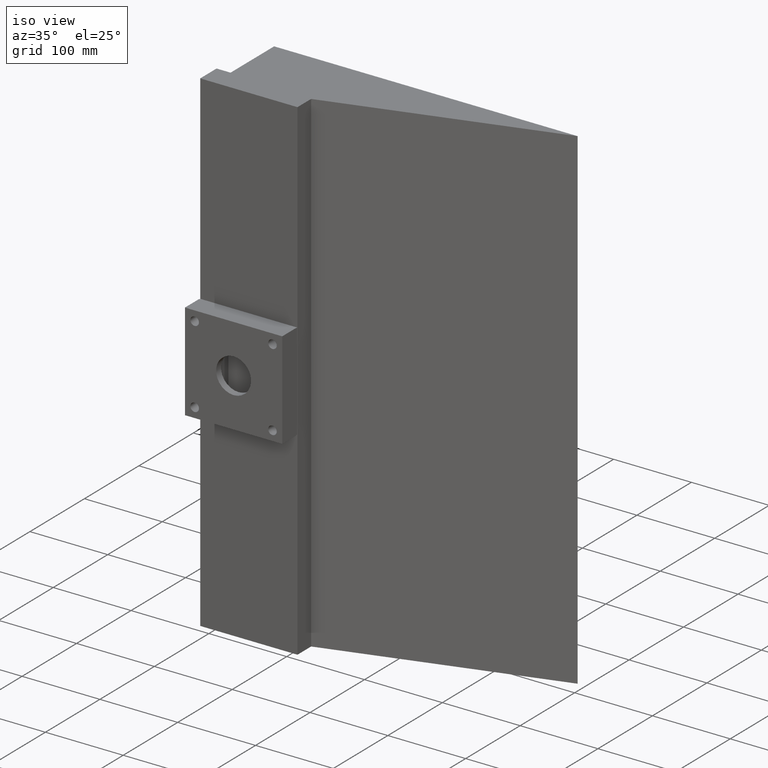
[diagram: clean part render]
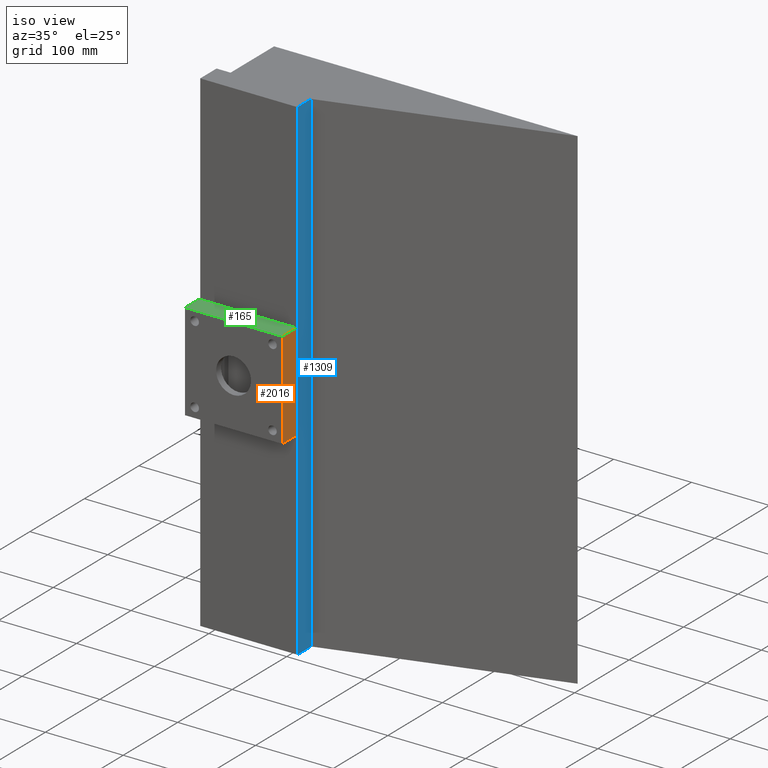
[diagram: same view with three faces highlighted in distinct colors, each labeled with its STEP entity id]
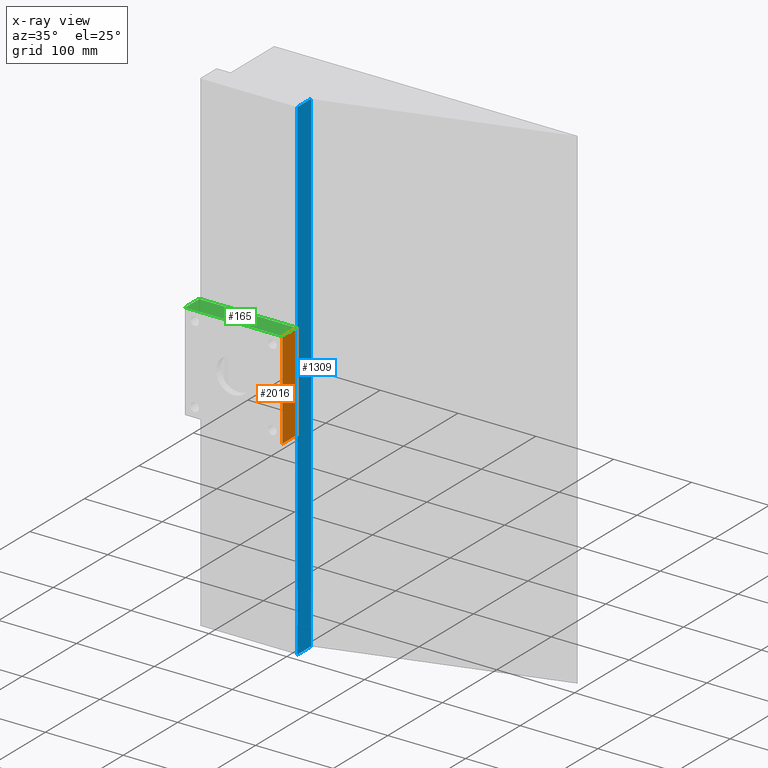
[diagram: x-ray of the same camera — body ghosted, the three highlighted faces saturated]
A machine part, iso view with three faces highlighted in distinct colors.
The next image is the same camera in x-ray (body ghosted, the three faces saturated) — at least one of them is partly hidden behind the body in this view.
Their STEP definitions:

[orange] entity #2016 — the highlighted planar face has unit normal (-1, 0, 0).
#107 = CARTESIAN_POINT ( 'NONE',  ( 20.88361753920467500, -112.0000000000000400, 62.49999999999938900 ) ) ;
#124 = ORIENTED_EDGE ( 'NONE', *, *, #1440, .F. ) ;
#169 = AXIS2_PLACEMENT_3D ( 'NONE', #2486, #291, #312 ) ;
#217 = DIRECTION ( 'NONE',  ( -0.0000000000000000000, -1.000000000000000000, -0.0000000000000000000 ) ) ;
#232 = VERTEX_POINT ( 'NONE', #2226 ) ;
#291 = DIRECTION ( 'NONE',  ( -1.000000000000000000, 0.0000000000000000000, 1.110223024625156500E-016 ) ) ;
#312 = DIRECTION ( 'NONE',  ( 1.110223024625156500E-016, 0.0000000000000000000, 1.000000000000000000 ) ) ;
#439 = VECTOR ( 'NONE', #1144, 1000.000000000000000 ) ;
#551 = LINE ( 'NONE', #2341, #1644 ) ;
#570 = ORIENTED_EDGE ( 'NONE', *, *, #1450, .T. ) ;
#589 = VERTEX_POINT ( 'NONE', #2035 ) ;
#785 = VERTEX_POINT ( 'NONE', #107 ) ;
#1052 = LINE ( 'NONE', #1416, #2244 ) ;
#1144 = DIRECTION ( 'NONE',  ( -1.110223024625156500E-016, -0.0000000000000000000, -1.000000000000000000 ) ) ;
#1149 = CARTESIAN_POINT ( 'NONE',  ( 20.88361753920466100, -138.0000000000000300, -62.50000000000061100 ) ) ;
#1416 = CARTESIAN_POINT ( 'NONE',  ( 20.88361753920466100, -112.0000000000000400, -62.50000000000061100 ) ) ;
#1440 = EDGE_CURVE ( 'NONE', #785, #232, #1052, .T. ) ;
#1450 = EDGE_CURVE ( 'NONE', #785, #2727, #551, .T. ) ;
#1579 = EDGE_CURVE ( 'NONE', #2727, #589, #2076, .T. ) ;
#1644 = VECTOR ( 'NONE', #217, 1000.000000000000000 ) ;
#1658 = EDGE_LOOP ( 'NONE', ( #1781, #2011, #124, #570 ) ) ;
#1781 = ORIENTED_EDGE ( 'NONE', *, *, #1579, .T. ) ;
#1800 = PLANE ( 'NONE',  #169 ) ;
#1922 = EDGE_CURVE ( 'NONE', #232, #589, #2069, .T. ) ;
#1956 = VECTOR ( 'NONE', #2746, 1000.000000000000000 ) ;
#2011 = ORIENTED_EDGE ( 'NONE', *, *, #1922, .F. ) ;
#2016 = ADVANCED_FACE ( 'NONE', ( #2569 ), #1800, .F. ) ;
#2035 = CARTESIAN_POINT ( 'NONE',  ( 20.88361753920466100, -138.0000000000000300, -62.50000000000061100 ) ) ;
#2047 = DIRECTION ( 'NONE',  ( -1.110223024625156500E-016, -0.0000000000000000000, -1.000000000000000000 ) ) ;
#2069 = LINE ( 'NONE', #2581, #1956 ) ;
#2076 = LINE ( 'NONE', #1149, #439 ) ;
#2226 = CARTESIAN_POINT ( 'NONE',  ( 20.88361753920466100, -112.0000000000000400, -62.50000000000061100 ) ) ;
#2244 = VECTOR ( 'NONE', #2047, 1000.000000000000000 ) ;
#2341 = CARTESIAN_POINT ( 'NONE',  ( 20.88361753920467500, -112.0000000000000400, 62.49999999999938900 ) ) ;
#2486 = CARTESIAN_POINT ( 'NONE',  ( 20.88361753920466100, -112.0000000000000400, -62.50000000000061100 ) ) ;
#2569 = FACE_OUTER_BOUND ( 'NONE', #1658, .T. ) ;
#2578 = CARTESIAN_POINT ( 'NONE',  ( 20.88361753920467500, -138.0000000000000300, 62.49999999999938900 ) ) ;
#2581 = CARTESIAN_POINT ( 'NONE',  ( 20.88361753920466100, -112.0000000000000400, -62.50000000000061100 ) ) ;
#2727 = VERTEX_POINT ( 'NONE', #2578 ) ;
#2746 = DIRECTION ( 'NONE',  ( -0.0000000000000000000, -1.000000000000000000, -0.0000000000000000000 ) ) ;

[blue] entity #1309 — the highlighted planar face has unit normal (-1, 0, 0).
#105 = FACE_OUTER_BOUND ( 'NONE', #342, .T. ) ;
#106 = ORIENTED_EDGE ( 'NONE', *, *, #1549, .F. ) ;
#108 = CARTESIAN_POINT ( 'NONE',  ( 20.88361753920343500, -84.99999999999998600, -318.0000000000000000 ) ) ;
#258 = CARTESIAN_POINT ( 'NONE',  ( 20.88361753920343500, -110.0000000000000000, -318.0000000000000000 ) ) ;
#301 = VECTOR ( 'NONE', #1747, 1000.000000000000000 ) ;
#323 = LINE ( 'NONE', #108, #301 ) ;
#342 = EDGE_LOOP ( 'NONE', ( #1058, #1324, #106, #1402 ) ) ;
#479 = DIRECTION ( 'NONE',  ( -0.0000000000000000000, -0.0000000000000000000, -1.000000000000000000 ) ) ;
#514 = CARTESIAN_POINT ( 'NONE',  ( 20.88361753920343500, -110.0000000000000000, 318.0000000000000000 ) ) ;
#560 = AXIS2_PLACEMENT_3D ( 'NONE', #1603, #1055, #1050 ) ;
#624 = EDGE_CURVE ( 'NONE', #830, #1073, #2498, .T. ) ;
#663 = VERTEX_POINT ( 'NONE', #258 ) ;
#830 = VERTEX_POINT ( 'NONE', #2192 ) ;
#884 = CARTESIAN_POINT ( 'NONE',  ( 20.88361753920343500, -110.0000000000000000, 318.0000000000000000 ) ) ;
#904 = DIRECTION ( 'NONE',  ( -0.0000000000000000000, -0.0000000000000000000, -1.000000000000000000 ) ) ;
#1050 = DIRECTION ( 'NONE',  ( 0.0000000000000000000, 0.0000000000000000000, 1.000000000000000000 ) ) ;
#1055 = DIRECTION ( 'NONE',  ( -1.000000000000000000, 0.0000000000000000000, 0.0000000000000000000 ) ) ;
#1058 = ORIENTED_EDGE ( 'NONE', *, *, #2424, .T. ) ;
#1073 = VERTEX_POINT ( 'NONE', #1415 ) ;
#1075 = CARTESIAN_POINT ( 'NONE',  ( 20.88361753920343500, -84.99999999999998600, 318.0000000000000000 ) ) ;
#1269 = VERTEX_POINT ( 'NONE', #884 ) ;
#1309 = ADVANCED_FACE ( 'NONE', ( #105 ), #1934, .F. ) ;
#1324 = ORIENTED_EDGE ( 'NONE', *, *, #624, .F. ) ;
#1402 = ORIENTED_EDGE ( 'NONE', *, *, #1731, .T. ) ;
#1415 = CARTESIAN_POINT ( 'NONE',  ( 20.88361753920343500, -84.99999999999998600, -318.0000000000000000 ) ) ;
#1429 = VECTOR ( 'NONE', #904, 1000.000000000000000 ) ;
#1462 = VECTOR ( 'NONE', #2866, 1000.000000000000000 ) ;
#1549 = EDGE_CURVE ( 'NONE', #1269, #830, #2207, .T. ) ;
#1603 = CARTESIAN_POINT ( 'NONE',  ( 20.88361753920343500, -84.99999999999998600, 318.0000000000000000 ) ) ;
#1731 = EDGE_CURVE ( 'NONE', #1269, #663, #2786, .T. ) ;
#1747 = DIRECTION ( 'NONE',  ( -0.0000000000000000000, 1.000000000000000000, -0.0000000000000000000 ) ) ;
#1934 = PLANE ( 'NONE',  #560 ) ;
#2192 = CARTESIAN_POINT ( 'NONE',  ( 20.88361753920343500, -84.99999999999998600, 318.0000000000000000 ) ) ;
#2207 = LINE ( 'NONE', #1075, #1462 ) ;
#2424 = EDGE_CURVE ( 'NONE', #663, #1073, #323, .T. ) ;
#2498 = LINE ( 'NONE', #2840, #1429 ) ;
#2748 = VECTOR ( 'NONE', #479, 1000.000000000000000 ) ;
#2786 = LINE ( 'NONE', #514, #2748 ) ;
#2840 = CARTESIAN_POINT ( 'NONE',  ( 20.88361753920343500, -84.99999999999998600, 318.0000000000000000 ) ) ;
#2866 = DIRECTION ( 'NONE',  ( -0.0000000000000000000, 1.000000000000000000, -0.0000000000000000000 ) ) ;

[green] entity #165 — the highlighted planar face has unit normal (0, 0, -1).
#107 = CARTESIAN_POINT ( 'NONE',  ( 20.88361753920467500, -112.0000000000000400, 62.49999999999938900 ) ) ;
#148 = LINE ( 'NONE', #2672, #1391 ) ;
#165 = ADVANCED_FACE ( 'NONE', ( #1060 ), #632, .F. ) ;
#217 = DIRECTION ( 'NONE',  ( -0.0000000000000000000, -1.000000000000000000, -0.0000000000000000000 ) ) ;
#340 = CARTESIAN_POINT ( 'NONE',  ( -104.1163824607953200, -112.0000000000000400, 62.49999999999938900 ) ) ;
#551 = LINE ( 'NONE', #2341, #1644 ) ;
#599 = ORIENTED_EDGE ( 'NONE', *, *, #2102, .F. ) ;
#632 = PLANE ( 'NONE',  #1170 ) ;
#748 = CARTESIAN_POINT ( 'NONE',  ( -104.1163824607953200, -112.0000000000000400, 62.49999999999938900 ) ) ;
#785 = VERTEX_POINT ( 'NONE', #107 ) ;
#796 = EDGE_LOOP ( 'NONE', ( #956, #934, #599, #933 ) ) ;
#894 = DIRECTION ( 'NONE',  ( -0.0000000000000000000, -1.000000000000000000, -0.0000000000000000000 ) ) ;
#933 = ORIENTED_EDGE ( 'NONE', *, *, #2540, .T. ) ;
#934 = ORIENTED_EDGE ( 'NONE', *, *, #1450, .F. ) ;
#955 = VERTEX_POINT ( 'NONE', #1748 ) ;
#956 = ORIENTED_EDGE ( 'NONE', *, *, #1526, .T. ) ;
#971 = VECTOR ( 'NONE', #894, 1000.000000000000000 ) ;
#1051 = CARTESIAN_POINT ( 'NONE',  ( -104.1163824607953200, -112.0000000000000400, 62.49999999999938900 ) ) ;
#1060 = FACE_OUTER_BOUND ( 'NONE', #796, .T. ) ;
#1170 = AXIS2_PLACEMENT_3D ( 'NONE', #340, #2832, #2851 ) ;
#1186 = DIRECTION ( 'NONE',  ( 1.000000000000000000, 0.0000000000000000000, 0.0000000000000000000 ) ) ;
#1391 = VECTOR ( 'NONE', #1186, 1000.000000000000000 ) ;
#1450 = EDGE_CURVE ( 'NONE', #785, #2727, #551, .T. ) ;
#1526 = EDGE_CURVE ( 'NONE', #955, #2727, #148, .T. ) ;
#1528 = LINE ( 'NONE', #1664, #1575 ) ;
#1560 = LINE ( 'NONE', #748, #971 ) ;
#1575 = VECTOR ( 'NONE', #2057, 1000.000000000000000 ) ;
#1644 = VECTOR ( 'NONE', #217, 1000.000000000000000 ) ;
#1664 = CARTESIAN_POINT ( 'NONE',  ( -104.1163824607953200, -112.0000000000000400, 62.49999999999938900 ) ) ;
#1748 = CARTESIAN_POINT ( 'NONE',  ( -104.1163824607953200, -138.0000000000000300, 62.49999999999938900 ) ) ;
#2050 = VERTEX_POINT ( 'NONE', #1051 ) ;
#2057 = DIRECTION ( 'NONE',  ( 1.000000000000000000, 0.0000000000000000000, 0.0000000000000000000 ) ) ;
#2102 = EDGE_CURVE ( 'NONE', #2050, #785, #1528, .T. ) ;
#2341 = CARTESIAN_POINT ( 'NONE',  ( 20.88361753920467500, -112.0000000000000400, 62.49999999999938900 ) ) ;
#2540 = EDGE_CURVE ( 'NONE', #2050, #955, #1560, .T. ) ;
#2578 = CARTESIAN_POINT ( 'NONE',  ( 20.88361753920467500, -138.0000000000000300, 62.49999999999938900 ) ) ;
#2672 = CARTESIAN_POINT ( 'NONE',  ( -104.1163824607953200, -138.0000000000000300, 62.49999999999938900 ) ) ;
#2727 = VERTEX_POINT ( 'NONE', #2578 ) ;
#2832 = DIRECTION ( 'NONE',  ( 0.0000000000000000000, 0.0000000000000000000, -1.000000000000000000 ) ) ;
#2851 = DIRECTION ( 'NONE',  ( -1.000000000000000000, 0.0000000000000000000, -0.0000000000000000000 ) ) ;